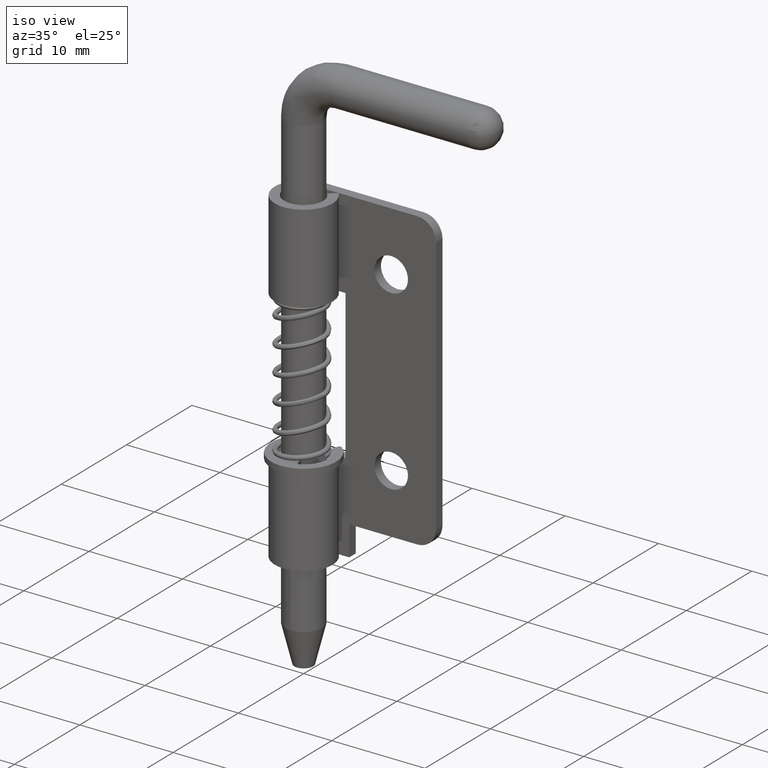
[diagram: clean part render]
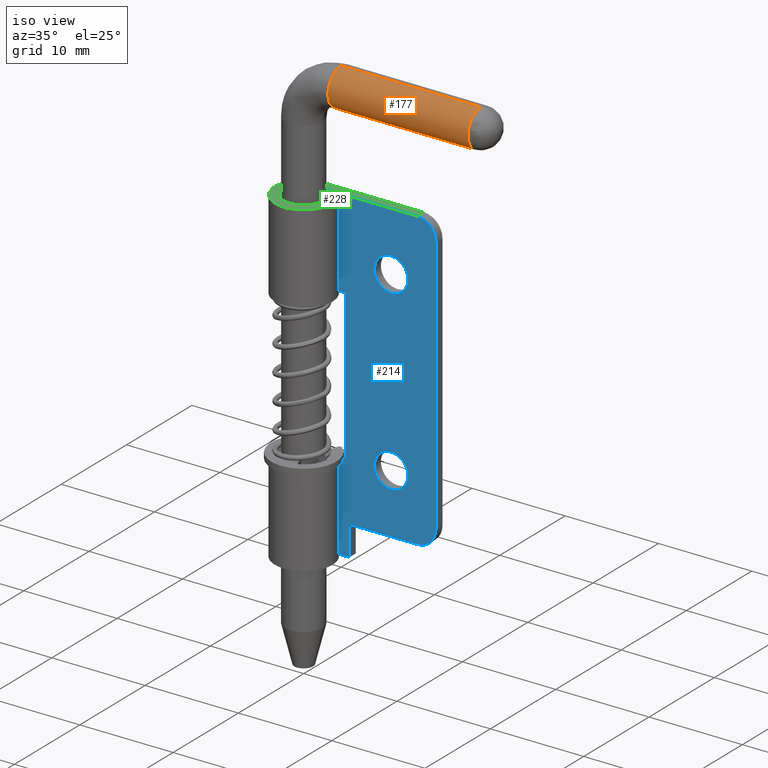
[diagram: same view with three faces highlighted in distinct colors, each labeled with its STEP entity id]
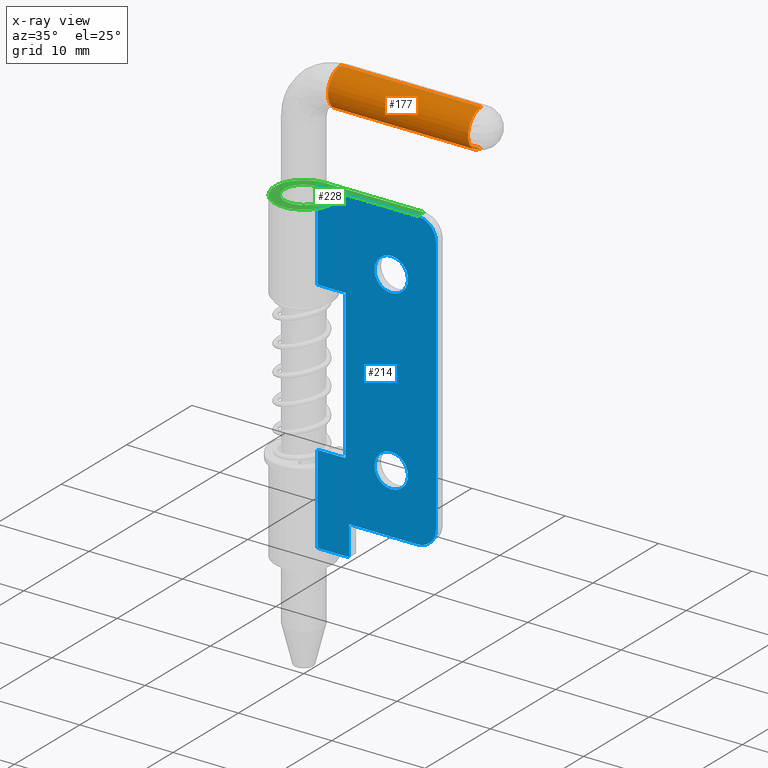
[diagram: x-ray of the same camera — body ghosted, the three highlighted faces saturated]
A machine part, iso view with three faces highlighted in distinct colors.
The next image is the same camera in x-ray (body ghosted, the three faces saturated) — at least one of them is partly hidden behind the body in this view.
Their STEP definitions:

[orange] entity #177 — the highlighted cylindrical surface (edge-blend (fillet) strip) has radius 2 mm, axis along (1, 0, 0).
#177=ADVANCED_FACE('',(#518),#517,.T.);
#517=CYLINDRICAL_SURFACE('',#1317,2.00000000000E+00);
#518=FACE_OUTER_BOUND('',#1318,.T.);
#1314=CARTESIAN_POINT('',(1.15000000000E+01,8.67292349049E-11,3.71000000001E+01));
#1315=DIRECTION('',(1.00000000000E+00,-0.00000000000E+00,0.00000000000E+00));
#1316=DIRECTION('',(0.00000000000E+00,-1.06581410364E-14,-1.00000000000E+00));
#1317=AXIS2_PLACEMENT_3D('',#1314,#1315,#1316);
#1318=EDGE_LOOP('',(#3239,#3240,#3241,#3242));
#3239=ORIENTED_EDGE('',*,*,#3605,.T.);
#3240=ORIENTED_EDGE('',*,*,#3619,.T.);
#3241=ORIENTED_EDGE('',*,*,#3595,.F.);
#3242=ORIENTED_EDGE('',*,*,#3620,.F.);
#3595=EDGE_CURVE('',#4167,#4166,#4174,.T.);
#3605=EDGE_CURVE('',#4238,#4231,#4239,.T.);
#3619=EDGE_CURVE('',#4231,#4166,#4327,.T.);
#3620=EDGE_CURVE('',#4238,#4167,#4333,.T.);
#4166=VERTEX_POINT('',#5464);
#4167=VERTEX_POINT('',#5465);
#4174=CIRCLE('',#5473,2.00000000000E+00);
#4231=VERTEX_POINT('',#5509);
#4238=VERTEX_POINT('',#5514);
#4239=CIRCLE('',#5518,2.00000000000E+00);
#4327=(BOUNDED_CURVE() B_SPLINE_CURVE(1,(#5572,#5573),.UNSPECIFIED.,.F.,.F.) B_SPLINE_CURVE_WITH_KNOTS((2,2),(8.33333328360E-02,9.16666666871E-01),.UNSPECIFIED.) CURVE() GEOMETRIC_REPRESENTATION_ITEM() RATIONAL_B_SPLINE_CURVE((1.00000000000E+00,1.00000000000E+00)) REPRESENTATION_ITEM('') );
#4333=(BOUNDED_CURVE() B_SPLINE_CURVE(1,(#5574,#5575),.UNSPECIFIED.,.F.,.F.) B_SPLINE_CURVE_WITH_KNOTS((2,2),(8.33333333333E-02,9.16666666667E-01),.UNSPECIFIED.) CURVE() GEOMETRIC_REPRESENTATION_ITEM() RATIONAL_B_SPLINE_CURVE((7.50000000000E-01,7.50000000000E-01)) REPRESENTATION_ITEM('') );
#5464=CARTESIAN_POINT('',(1.90000000000E+01,8.67287450623E-11,3.51000000001E+01));
#5465=CARTESIAN_POINT('',(1.90000000000E+01,8.67292349049E-11,3.91000000001E+01));
#5470=CARTESIAN_POINT('',(1.90000000000E+01,8.67292349049E-11,3.71000000001E+01));
#5471=DIRECTION('',(1.00000000000E+00,0.00000000000E+00,-0.00000000000E+00));
#5472=DIRECTION('',(-0.00000000000E+00,-1.22460650000E-16,-1.00000000000E+00));
#5473=AXIS2_PLACEMENT_3D('',#5470,#5471,#5472);
#5509=CARTESIAN_POINT('',(4.00000000000E+00,8.67084182232E-11,3.51000000001E+01));
#5514=CARTESIAN_POINT('',(4.00000000000E+00,8.67086402678E-11,3.91000000001E+01));
#5515=CARTESIAN_POINT('',(4.00000000000E+00,8.67084182232E-11,3.71000000001E+01));
#5516=DIRECTION('',(1.00000000000E+00,0.00000000000E+00,-0.00000000000E+00));
#5517=DIRECTION('',(-0.00000000000E+00,-1.11022300000E-16,-1.00000000000E+00));
#5518=AXIS2_PLACEMENT_3D('',#5515,#5516,#5517);
#5572=CARTESIAN_POINT('',(3.99999999105E+00,8.67079186228E-11,3.51000000001E+01));
#5573=CARTESIAN_POINT('',(1.90000000037E+01,8.67079186228E-11,3.51000000001E+01));
#5574=CARTESIAN_POINT('',(4.00000000000E+00,8.67505326833E-11,3.91000000001E+01));
#5575=CARTESIAN_POINT('',(1.90000000000E+01,8.67505326833E-11,3.91000000001E+01));

[blue] entity #214 — the highlighted planar face has unit normal (-0, -1, 0).
#214=ADVANCED_FACE('',(#888,#889,#890),#887,.T.);
#887=PLANE('',#2982);
#888=FACE_OUTER_BOUND('',#2983,.T.);
#889=FACE_BOUND('',#2984,.T.);
#890=FACE_BOUND('',#2985,.T.);
#2979=CARTESIAN_POINT('',(-1.27000000000E+00,2.09999999996E+00,-3.85000000000E+01));
#2980=DIRECTION('',(-1.24777157110E-13,-1.00000000000E+00,0.00000000000E+00));
#2981=DIRECTION('',(1.00000000000E+00,-1.24777157110E-13,0.00000000000E+00));
#2982=AXIS2_PLACEMENT_3D('',#2979,#2980,#2981);
#2983=EDGE_LOOP('',(#3413,#3414,#3415,#3416,#3417,#3418,#3419,#3420,#3421,#3422,#3423,#3424));
#2984=EDGE_LOOP('',(#3425,#3426));
#2985=EDGE_LOOP('',(#3427,#3428));
#3413=ORIENTED_EDGE('',*,*,#3693,.T.);
#3414=ORIENTED_EDGE('',*,*,#3694,.T.);
#3415=ORIENTED_EDGE('',*,*,#3695,.F.);
#3416=ORIENTED_EDGE('',*,*,#3696,.T.);
#3417=ORIENTED_EDGE('',*,*,#3697,.T.);
#3418=ORIENTED_EDGE('',*,*,#3698,.T.);
#3419=ORIENTED_EDGE('',*,*,#3699,.F.);
#3420=ORIENTED_EDGE('',*,*,#3700,.T.);
#3421=ORIENTED_EDGE('',*,*,#3701,.F.);
#3422=ORIENTED_EDGE('',*,*,#3702,.T.);
#3423=ORIENTED_EDGE('',*,*,#3703,.F.);
#3424=ORIENTED_EDGE('',*,*,#3704,.T.);
#3425=ORIENTED_EDGE('',*,*,#3705,.F.);
#3426=ORIENTED_EDGE('',*,*,#3706,.F.);
#3427=ORIENTED_EDGE('',*,*,#3707,.F.);
#3428=ORIENTED_EDGE('',*,*,#3708,.F.);
#3693=EDGE_CURVE('',#4809,#4810,#4811,.T.);
#3694=EDGE_CURVE('',#4810,#4817,#4818,.T.);
#3695=EDGE_CURVE('',#4824,#4817,#4825,.T.);
#3696=EDGE_CURVE('',#4824,#4831,#4832,.T.);
#3697=EDGE_CURVE('',#4831,#4838,#4839,.T.);
#3698=EDGE_CURVE('',#4838,#4845,#4846,.T.);
#3699=EDGE_CURVE('',#4852,#4845,#4853,.T.);
#3700=EDGE_CURVE('',#4852,#4859,#4860,.T.);
#3701=EDGE_CURVE('',#4866,#4859,#4867,.T.);
#3702=EDGE_CURVE('',#4866,#4873,#4874,.T.);
#3703=EDGE_CURVE('',#4880,#4873,#4881,.T.);
#3704=EDGE_CURVE('',#4880,#4809,#4887,.T.);
#3705=EDGE_CURVE('',#4893,#4894,#4895,.T.);
#3706=EDGE_CURVE('',#4894,#4893,#4901,.T.);
#3707=EDGE_CURVE('',#4907,#4908,#4909,.T.);
#3708=EDGE_CURVE('',#4908,#4907,#4915,.T.);
#4809=VERTEX_POINT('',#6102);
#4810=VERTEX_POINT('',#6103);
#4811=LINE('',#6104,#6105);
#4817=VERTEX_POINT('',#6107);
#4818=CIRCLE('',#6111,2.00000000000E+00);
#4824=VERTEX_POINT('',#6112);
#4825=LINE('',#6113,#6114);
#4831=VERTEX_POINT('',#6116);
#4832=CIRCLE('',#6120,2.00000000000E+00);
#4838=VERTEX_POINT('',#6121);
#4839=LINE('',#6122,#6123);
#4845=VERTEX_POINT('',#6125);
#4846=LINE('',#6126,#6127);
#4852=VERTEX_POINT('',#6129);
#4853=LINE('',#6130,#6131);
#4859=VERTEX_POINT('',#6133);
#4860=LINE('',#6134,#6135);
#4866=VERTEX_POINT('',#6137);
#4867=LINE('',#6138,#6139);
#4873=VERTEX_POINT('',#6141);
#4874=LINE('',#6142,#6143);
#4880=VERTEX_POINT('',#6145);
#4881=LINE('',#6146,#6147);
#4887=LINE('',#6149,#6150);
#4893=VERTEX_POINT('',#6152);
#4894=VERTEX_POINT('',#6153);
#4895=CIRCLE('',#6157,1.80000000000E+00);
#4901=CIRCLE('',#6161,1.80000000000E+00);
#4907=VERTEX_POINT('',#6162);
#4908=VERTEX_POINT('',#6163);
#4909=CIRCLE('',#6167,1.80000000000E+00);
#4915=CIRCLE('',#6171,1.80000000000E+00);
#6102=CARTESIAN_POINT('',(3.39999999999E+00,2.09999999996E+00,-3.18000000000E+01));
#6103=CARTESIAN_POINT('',(1.07000000000E+01,2.09999999995E+00,-3.18000000000E+01));
#6104=CARTESIAN_POINT('',(3.39999999999E+00,2.09999999996E+00,-3.18000000000E+01));
#6105=VECTOR('',#6106,7.30000000001E+00);
#6106=DIRECTION('',(1.00000000000E+00,-1.36986312704E-12,0.00000000000E+00));
#6107=CARTESIAN_POINT('',(1.27000000000E+01,2.09999999995E+00,-2.98000000000E+01));
#6108=CARTESIAN_POINT('',(1.07000000000E+01,2.09999999996E+00,-2.98000000000E+01));
#6109=DIRECTION('',(-1.24777157110E-13,-1.00000000000E+00,-0.00000000000E+00));
#6110=DIRECTION('',(-0.00000000000E+00,-0.00000000000E+00,1.00000000000E+00));
#6111=AXIS2_PLACEMENT_3D('',#6108,#6109,#6110);
#6112=CARTESIAN_POINT('',(1.27000000000E+01,2.09999999995E+00,-2.00000000000E+00));
#6113=CARTESIAN_POINT('',(1.27000000000E+01,2.09999999995E+00,-2.00000000000E+00));
#6114=VECTOR('',#6115,2.78000000000E+01);
#6115=DIRECTION('',(0.00000000000E+00,0.00000000000E+00,-1.00000000000E+00));
#6116=CARTESIAN_POINT('',(1.07000000000E+01,2.09999999995E+00,0.00000000000E+00));
#6117=CARTESIAN_POINT('',(1.07000000000E+01,2.09999999995E+00,-2.00000000000E+00));
#6118=DIRECTION('',(-1.24789067968E-13,-1.00000000000E+00,0.00000000000E+00));
#6119=DIRECTION('',(-1.00000000000E+00,1.24789067968E-13,-0.00000000000E+00));
#6120=AXIS2_PLACEMENT_3D('',#6117,#6118,#6119);
#6121=CARTESIAN_POINT('',(-4.26325641456E-14,2.09999999995E+00,0.00000000000E+00));
#6122=CARTESIAN_POINT('',(1.07000000000E+01,2.09999999995E+00,0.00000000000E+00));
#6123=VECTOR('',#6124,1.07000000000E+01);
#6124=DIRECTION('',(-1.00000000000E+00,0.00000000000E+00,0.00000000000E+00));
#6125=CARTESIAN_POINT('',(-4.26325641456E-14,2.09999999995E+00,-9.50000000000E+00));
#6126=CARTESIAN_POINT('',(-4.26325641456E-14,2.09999999995E+00,0.00000000000E+00));
#6127=VECTOR('',#6128,9.50000000000E+00);
#6128=DIRECTION('',(0.00000000000E+00,0.00000000000E+00,-1.00000000000E+00));
#6129=CARTESIAN_POINT('',(3.00000000003E+00,2.09999999995E+00,-9.50000000000E+00));
#6130=CARTESIAN_POINT('',(3.00000000003E+00,2.09999999995E+00,-9.50000000000E+00));
#6131=VECTOR('',#6132,3.00000000003E+00);
#6132=DIRECTION('',(-1.00000000000E+00,0.00000000000E+00,0.00000000000E+00));
#6133=CARTESIAN_POINT('',(3.00000000003E+00,2.09999999995E+00,-2.55000000000E+01));
#6134=CARTESIAN_POINT('',(3.00000000003E+00,2.09999999995E+00,-9.50000000000E+00));
#6135=VECTOR('',#6136,1.60000000000E+01);
#6136=DIRECTION('',(0.00000000000E+00,0.00000000000E+00,-1.00000000000E+00));
#6137=CARTESIAN_POINT('',(-4.26325641456E-14,2.09999999995E+00,-2.55000000000E+01));
#6138=CARTESIAN_POINT('',(-4.26325641456E-14,2.09999999995E+00,-2.55000000000E+01));
#6139=VECTOR('',#6140,3.00000000003E+00);
#6140=DIRECTION('',(1.00000000000E+00,0.00000000000E+00,0.00000000000E+00));
#6141=CARTESIAN_POINT('',(-4.26325641456E-14,2.09999999995E+00,-3.50000000000E+01));
#6142=CARTESIAN_POINT('',(-4.26325641456E-14,2.09999999995E+00,-2.55000000000E+01));
#6143=VECTOR('',#6144,9.50000000000E+00);
#6144=DIRECTION('',(0.00000000000E+00,0.00000000000E+00,-1.00000000000E+00));
#6145=CARTESIAN_POINT('',(3.39999999999E+00,2.09999999995E+00,-3.50000000000E+01));
#6146=CARTESIAN_POINT('',(3.39999999999E+00,2.09999999995E+00,-3.50000000000E+01));
#6147=VECTOR('',#6148,3.39999999999E+00);
#6148=DIRECTION('',(-1.00000000000E+00,0.00000000000E+00,0.00000000000E+00));
#6149=CARTESIAN_POINT('',(3.39999999999E+00,2.09999999995E+00,-3.50000000000E+01));
#6150=VECTOR('',#6151,3.20000000000E+00);
#6151=DIRECTION('',(0.00000000000E+00,3.12500025856E-12,1.00000000000E+00));
#6152=CARTESIAN_POINT('',(7.89999990541E+00,2.09999999996E+00,-8.19999999987E+00));
#6153=CARTESIAN_POINT('',(7.90000981806E+00,2.09999999996E+00,-4.59999999990E+00));
#6154=CARTESIAN_POINT('',(7.89999999999E+00,2.09999999996E+00,-6.39999999987E+00));
#6155=DIRECTION('',(-1.24777155767E-13,-1.00000000000E+00,6.55634637904E-21));
#6156=DIRECTION('',(5.45448333327E-06,-6.74038570123E-19,9.99999999985E-01));
#6157=AXIS2_PLACEMENT_3D('',#6154,#6155,#6156);
#6158=CARTESIAN_POINT('',(7.89999999999E+00,2.09999999996E+00,-6.39999999987E+00));
#6159=DIRECTION('',(-1.24777155767E-13,-1.00000000000E+00,6.55634637904E-21));
#6160=DIRECTION('',(5.45448333327E-06,-6.74038570123E-19,9.99999999985E-01));
#6161=AXIS2_PLACEMENT_3D('',#6158,#6159,#6160);
#6162=CARTESIAN_POINT('',(7.89999990538E+00,2.09999999996E+00,-2.71999999999E+01));
#6163=CARTESIAN_POINT('',(7.90000981803E+00,2.09999999996E+00,-2.35999999999E+01));
#6164=CARTESIAN_POINT('',(7.89999999996E+00,2.09999999996E+00,-2.53999999999E+01));
#6165=DIRECTION('',(-1.24777155767E-13,-1.00000000000E+00,6.55634637904E-21));
#6166=DIRECTION('',(5.45448333416E-06,-6.74038570234E-19,9.99999999985E-01));
#6167=AXIS2_PLACEMENT_3D('',#6164,#6165,#6166);
#6168=CARTESIAN_POINT('',(7.89999999996E+00,2.09999999996E+00,-2.53999999999E+01));
#6169=DIRECTION('',(-1.24777155767E-13,-1.00000000000E+00,6.55634637904E-21));
#6170=DIRECTION('',(5.45448333416E-06,-6.74038570234E-19,9.99999999985E-01));
#6171=AXIS2_PLACEMENT_3D('',#6168,#6169,#6170);

[green] entity #228 — the highlighted planar face has unit normal (0, 0, 1).
#228=ADVANCED_FACE('',(#1032),#1031,.T.);
#1031=PLANE('',#3056);
#1032=FACE_OUTER_BOUND('',#3057,.T.);
#3053=CARTESIAN_POINT('',(-5.45092412505E+00,-5.39385412324E+00,0.00000000000E+00));
#3054=DIRECTION('',(0.00000000000E+00,-0.00000000000E+00,1.00000000000E+00));
#3055=DIRECTION('',(1.00000000000E+00,0.00000000000E+00,0.00000000000E+00));
#3056=AXIS2_PLACEMENT_3D('',#3053,#3054,#3055);
#3057=EDGE_LOOP('',(#3497,#3498,#3499,#3500,#3501,#3502));
#3497=ORIENTED_EDGE('',*,*,#3697,.F.);
#3498=ORIENTED_EDGE('',*,*,#3725,.T.);
#3499=ORIENTED_EDGE('',*,*,#3719,.F.);
#3500=ORIENTED_EDGE('',*,*,#3737,.F.);
#3501=ORIENTED_EDGE('',*,*,#3742,.F.);
#3502=ORIENTED_EDGE('',*,*,#3748,.T.);
#3697=EDGE_CURVE('',#4831,#4838,#4839,.T.);
#3719=EDGE_CURVE('',#4985,#4992,#4993,.T.);
#3725=EDGE_CURVE('',#4831,#4992,#5033,.T.);
#3737=EDGE_CURVE('',#5104,#4985,#5111,.T.);
#3742=EDGE_CURVE('',#5136,#5104,#5143,.T.);
#3748=EDGE_CURVE('',#5136,#4838,#5179,.T.);
#4831=VERTEX_POINT('',#6116);
#4838=VERTEX_POINT('',#6121);
#4839=LINE('',#6122,#6123);
#4985=VERTEX_POINT('',#6210);
#4992=VERTEX_POINT('',#6214);
#4993=LINE('',#6215,#6216);
#5033=LINE('',#6242,#6243);
#5104=VERTEX_POINT('',#6283);
#5111=CIRCLE('',#6290,3.09999999995E+00);
#5136=VERTEX_POINT('',#6303);
#5143=LINE('',#6307,#6308);
#5179=CIRCLE('',#6329,2.09999999995E+00);
#6116=CARTESIAN_POINT('',(1.07000000000E+01,2.09999999995E+00,0.00000000000E+00));
#6121=CARTESIAN_POINT('',(-4.26325641456E-14,2.09999999995E+00,0.00000000000E+00));
#6122=CARTESIAN_POINT('',(1.07000000000E+01,2.09999999995E+00,0.00000000000E+00));
#6123=VECTOR('',#6124,1.07000000000E+01);
#6124=DIRECTION('',(-1.00000000000E+00,0.00000000000E+00,0.00000000000E+00));
#6210=CARTESIAN_POINT('',(-5.69460761595E-16,3.09999999995E+00,0.00000000000E+00));
#6214=CARTESIAN_POINT('',(1.07000000000E+01,3.09999999995E+00,0.00000000000E+00));
#6215=CARTESIAN_POINT('',(-5.69460761595E-16,3.09999999995E+00,0.00000000000E+00));
#6216=VECTOR('',#6217,1.07000000000E+01);
#6217=DIRECTION('',(1.00000000000E+00,0.00000000000E+00,0.00000000000E+00));
#6242=CARTESIAN_POINT('',(1.07000000000E+01,2.09999999995E+00,0.00000000000E+00));
#6243=VECTOR('',#6244,1.00000000000E+00);
#6244=DIRECTION('',(0.00000000000E+00,1.00000000000E+00,0.00000000000E+00));
#6283=CARTESIAN_POINT('',(2.28108411515E+00,2.09920348211E+00,0.00000000000E+00));
#6287=CARTESIAN_POINT('',(0.00000000000E+00,0.00000000000E+00,0.00000000000E+00));
#6288=DIRECTION('',(0.00000000000E+00,0.00000000000E+00,-1.00000000000E+00));
#6289=DIRECTION('',(7.35833585544E-01,6.77162413595E-01,0.00000000000E+00));
#6290=AXIS2_PLACEMENT_3D('',#6287,#6288,#6289);
#6303=CARTESIAN_POINT('',(1.54525052961E+00,1.42204106852E+00,0.00000000000E+00));
#6307=CARTESIAN_POINT('',(1.54525052961E+00,1.42204106852E+00,0.00000000000E+00));
#6308=VECTOR('',#6309,9.99999999994E-01);
#6309=DIRECTION('',(7.35833585545E-01,6.77162413594E-01,0.00000000000E+00));
#6326=CARTESIAN_POINT('',(0.00000000000E+00,-2.84217094304E-14,0.00000000000E+00));
#6327=DIRECTION('',(0.00000000000E+00,0.00000000000E+00,-1.00000000000E+00));
#6328=DIRECTION('',(7.35833585544E-01,6.77162413595E-01,0.00000000000E+00));
#6329=AXIS2_PLACEMENT_3D('',#6326,#6327,#6328);